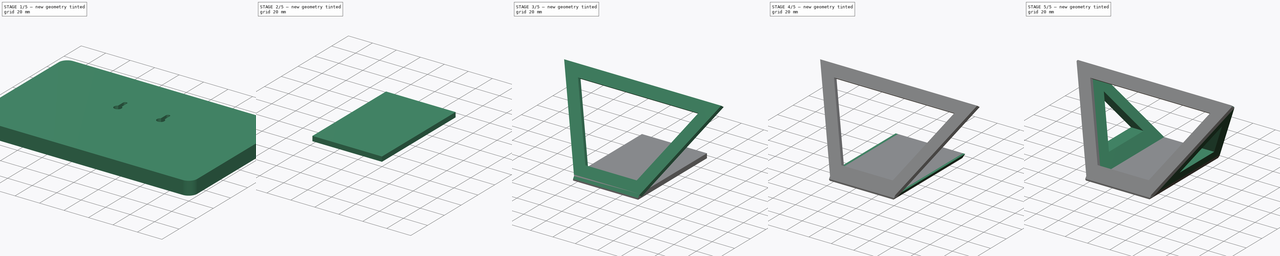
[diagram: build sequence overview — one tinted view per stage of 5, left to right]
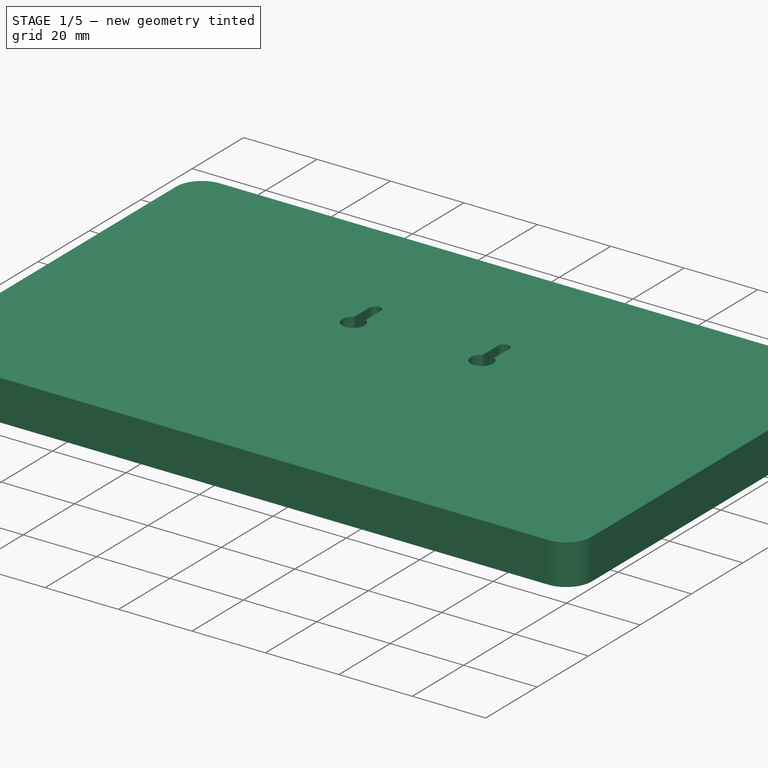
[diagram: stage 1 of 5 — iso view after this stage's code; geometry added in this stage tinted green]
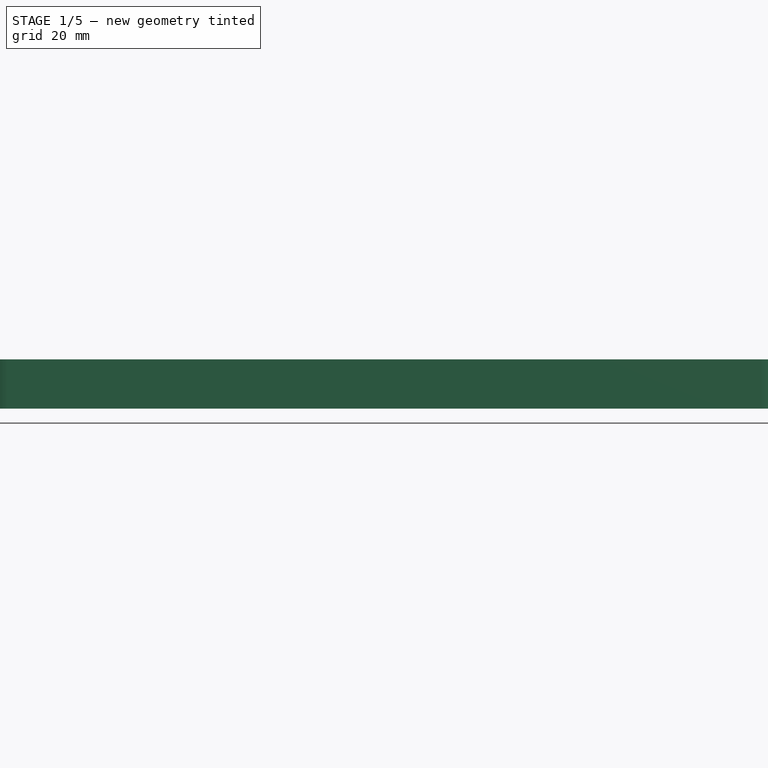
[diagram: stage 1 of 5 — front view after this stage's code; geometry added in this stage tinted green]
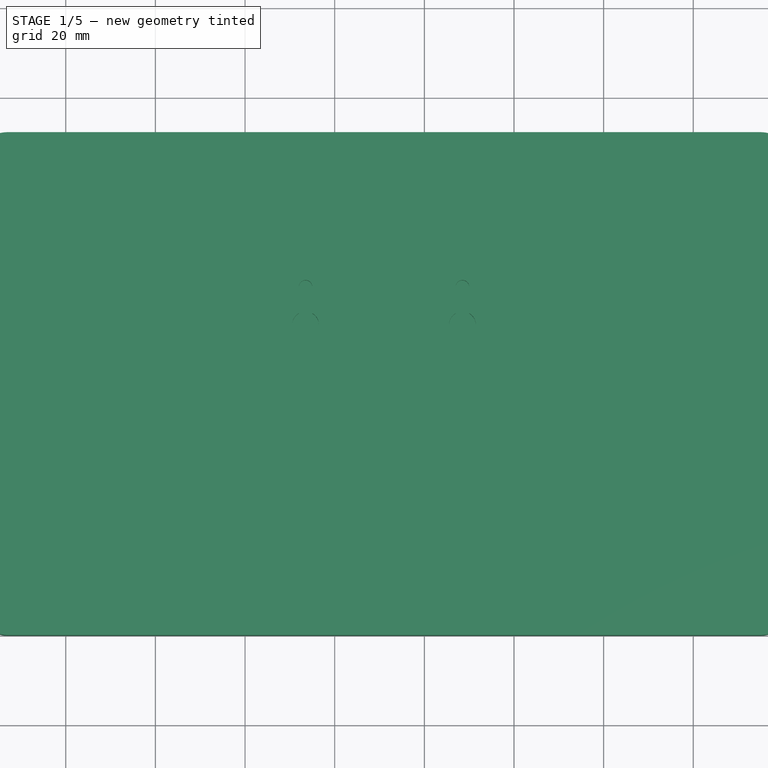
[diagram: stage 1 of 5 — top view after this stage's code; geometry added in this stage tinted green]
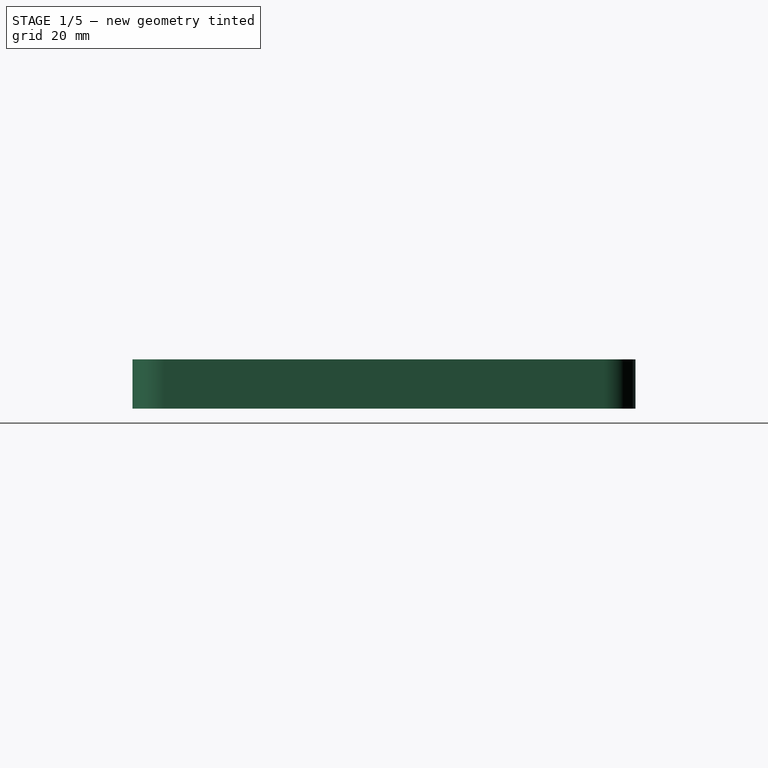
[diagram: stage 1 of 5 — right view after this stage's code; geometry added in this stage tinted green]
FCSTD DOCUMENT  (FreeCAD 0.20R25645 (Git))
Label: touchscreen stand
License: Creative Commons Attribution
LicenseURL: http://creativecommons.org/licenses/by/4.0/
objects: Sketcher::SketchObject×15, PartDesign::Pad×6, PartDesign::Pocket×5, PartDesign::Plane×3, PartDesign::Fillet×2, PartDesign::Body×2, PartDesign::AdditiveLoft×2, PartDesign::SubShapeBinder×1
note: 51 computed .brp shape members not serialized (recipe doc carries the construction recipe); baked Part::Feature solids carry a one-line shape summary decoded from their .brp

FEATURE [Sketcher::SketchObject] Sketch
  FullyConstrained = true
  MapMode = 5
  Support = -> [XY_Plane]
  sketch-geometry (4):
    g0: LineSegment StartX=0 StartY=0 StartZ=0 EndX=182 EndY=0 EndZ=0
    g1: LineSegment StartX=182 StartY=0 StartZ=0 EndX=182 EndY=112.2 EndZ=0
    g2: LineSegment StartX=182 StartY=112.2 StartZ=0 EndX=0 EndY=112.2 EndZ=0
    g3: LineSegment StartX=0 StartY=112.2 StartZ=0 EndX=0 EndY=0 EndZ=0
  constraints (11):
    c: Coincident(g0,g1)
    c: Coincident(g1,g2)
    c: Coincident(g2,g3)
    c: Coincident(g3,g0)
    c: Horizontal(g0)
    c: Horizontal(g2)
    c: Vertical(g1)
    c: Vertical(g3)
    c: Coincident(g0,g-1)
    c: Distance(g2) = 182
    c: Distance(g3) = 112.2
FEATURE [PartDesign::Pad] Pad
  Direction = (0,0,1)
  Length = 11
  Length2 = 100
  Profile = -> Sketch
  Type = 0
FEATURE [Sketcher::SketchObject] Sketch001
  ExternalGeometry = -> [Pad]
  FullyConstrained = true
  MapMode = 5
  Placement = pos=(0,0,11) rot=(0,0,1;0rad)
  Support = -> [Pad]
  sketch-geometry (15):
    g0: ArcOfCircle CenterX=73.5 CenterY=77.7 CenterZ=0 NormalX=0 NormalY=0 NormalZ=1 AngleXU=0 Radius=1.5 StartAngle=6.56e-14 EndAngle=3.14159
    g1: ArcOfCircle CenterX=73.5 CenterY=69.2 CenterZ=0 NormalX=0 NormalY=0 NormalZ=1 AngleXU=0 Radius=3 StartAngle=2.0944 EndAngle=7.33038
    g2: LineSegment StartX=72 StartY=77.7 StartZ=0 EndX=75 EndY=77.7 EndZ=0
    g3: LineSegment StartX=72 StartY=77.7 StartZ=0 EndX=72 EndY=71.7981 EndZ=0
    g4: LineSegment StartX=75 StartY=71.7981 StartZ=0 EndX=75 EndY=77.7 EndZ=0
    g5: LineSegment StartX=73.5 StartY=79.2 StartZ=0 EndX=73.5 EndY=66.2 EndZ=0
    g6: ArcOfCircle CenterX=108.5 CenterY=77.7 CenterZ=0 NormalX=0 NormalY=0 NormalZ=1 AngleXU=0 Radius=1.5 StartAngle=-3.517e-13 EndAngle=3.14159
    g7: LineSegment StartX=107 StartY=77.7 StartZ=0 EndX=110 EndY=77.7 EndZ=0
    g8: LineSegment StartX=107 StartY=77.7 StartZ=0 EndX=107 EndY=71.7981 EndZ=0
    g9: LineSegment StartX=110 StartY=71.7981 StartZ=0 EndX=110 EndY=77.7 EndZ=0
    g10: LineSegment StartX=108.5 StartY=79.2 StartZ=0 EndX=108.5 EndY=66.2 EndZ=0
    g11: ArcOfCircle CenterX=108.5 CenterY=69.2 CenterZ=0 NormalX=0 NormalY=0 NormalZ=1 AngleXU=0 Radius=3 StartAngle=2.0944 EndAngle=7.33038
    g12: LineSegment StartX=73.5 StartY=66.2 StartZ=0 EndX=108.5 EndY=66.2 EndZ=0
    g13: LineSegment StartX=73.5 StartY=66.2 StartZ=0 EndX=0 EndY=66.2 EndZ=0
    g14: LineSegment StartX=108.5 StartY=66.2 StartZ=0 EndX=182 EndY=66.2 EndZ=0
  constraints (48):
    c: Radius(g1) = 3
    c: Radius(g0) = 1.5
    c: Coincident(g2,g0)
    c: Coincident(g2,g0)
    c: PointOnObject(g0,g2)
    c: Horizontal(g2)
    c: Coincident(g3,g0)
    c: Coincident(g3,g1)
    c: Coincident(g4,g1)
    c: Coincident(g4,g0)
    c: Vertical(g4)
    c: Vertical(g3)
    c: Equal(g3,g4)
    c: PointOnObject(g5,g0)
    c: PointOnObject(g5,g1)
    c: Vertical(g5)
    c: PointOnObject(g1,g5)
    c: Distance(g5) = 13
    c: Distance(g5,g-3) = 33
    c: Equal(g1,g11) = 3
    c: Equal(g0,g6) = 1.5
    c: Coincident(g7,g6)
    c: Coincident(g7,g6)
    c: PointOnObject(g6,g7)
    c: Horizontal(g7)
    c: Coincident(g8,g6)
    c: Coincident(g8,g11)
    c: Coincident(g9,g11)
    c: Coincident(g9,g6)
    c: Vertical(g9)
    c: Vertical(g8)
    c: Equal(g8,g9)
    c: PointOnObject(g10,g6)
    c: PointOnObject(g10,g11)
    c: Vertical(g10)
    c: PointOnObject(g11,g10)
    c: Equal(g5,g10) = 13
    c: Coincident(g12,g5)
    c: Horizontal(g12)
    c: Coincident(g12,g10)
    c: Distance(g12) = 35
    c: Coincident(g13,g5)
    c: PointOnObject(g13,g-2)
    c: Horizontal(g13)
    c: Coincident(g14,g10)
    c: PointOnObject(g14,g-4)
    c: Horizontal(g14)
    c: Equal(g14,g13)
FEATURE [PartDesign::Pocket] Pocket
  BaseFeature = -> Pad
  Length = 5
  Length2 = 100
  Profile = -> Sketch001
  Type = 0
FEATURE [PartDesign::Fillet] Fillet
  Base = -> Pocket [Edge1,Edge2,Edge8,Edge5]
  BaseFeature = -> Pocket
  Radius = 7
  SupportTransform = false
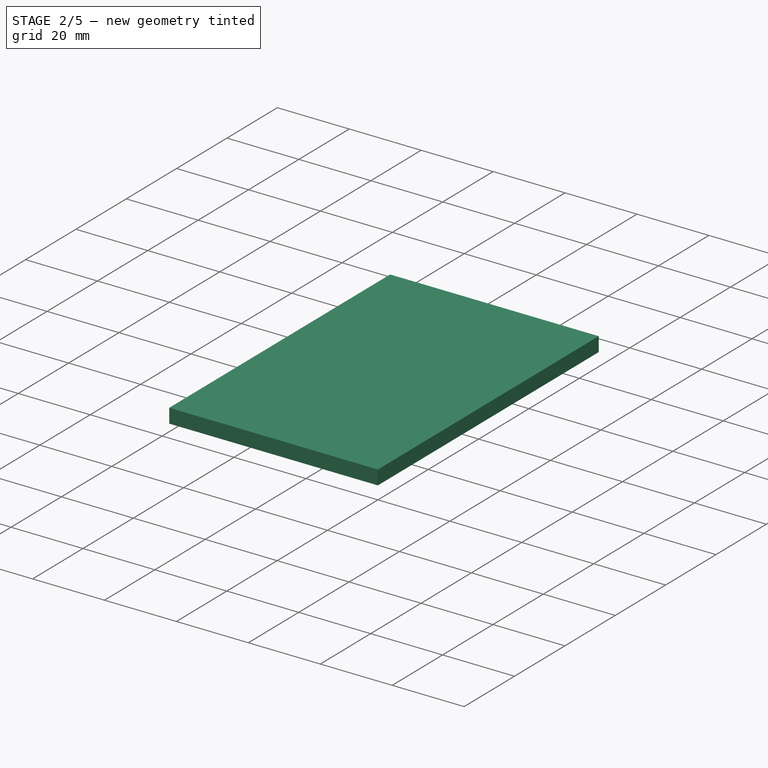
[diagram: stage 2 of 5 — iso view after this stage's code; geometry added in this stage tinted green]
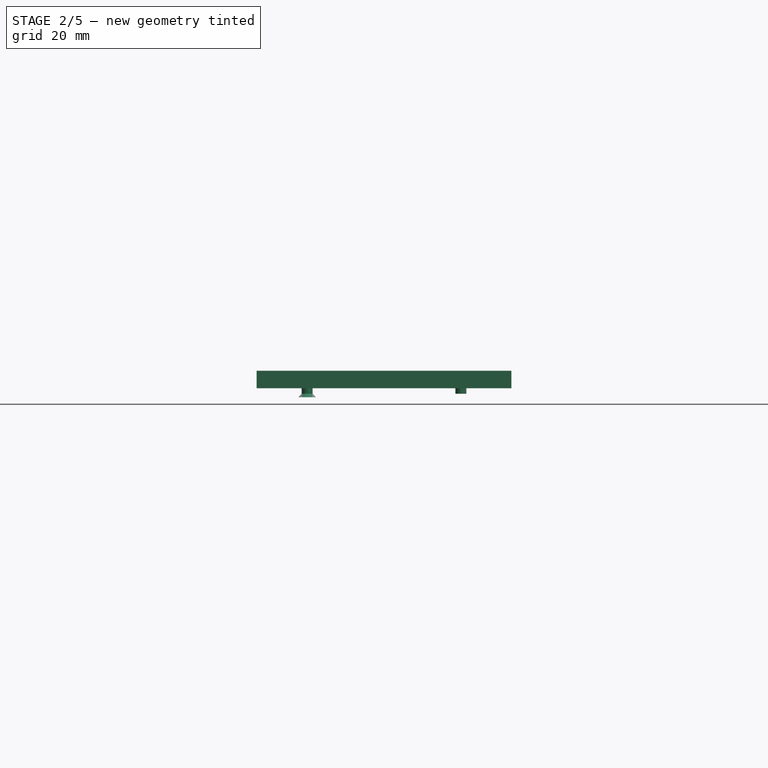
[diagram: stage 2 of 5 — front view after this stage's code; geometry added in this stage tinted green]
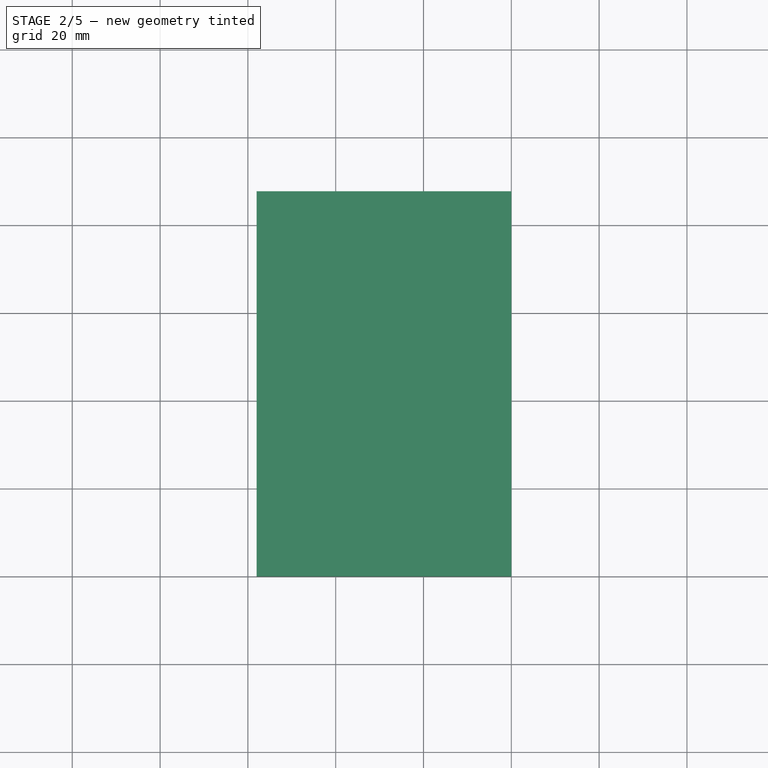
[diagram: stage 2 of 5 — top view after this stage's code; geometry added in this stage tinted green]
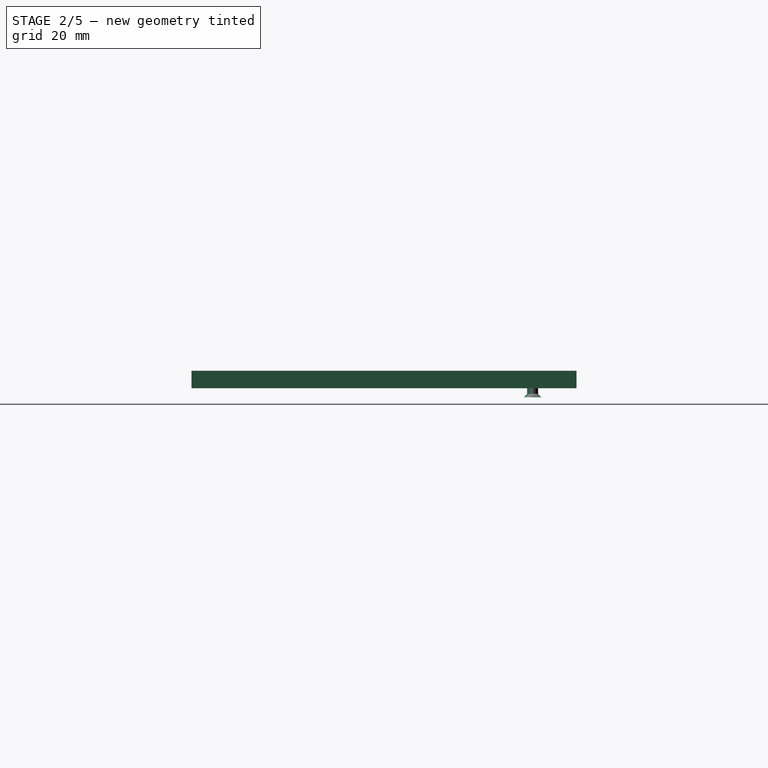
[diagram: stage 2 of 5 — right view after this stage's code; geometry added in this stage tinted green]
FEATURE [PartDesign::Body] Body  label="touchscreen"
  Group = -> [Sketch,Pad,Sketch001,Pocket,Fillet]
  Origin = -> Origin
  Tip = -> Fillet
FEATURE [PartDesign::SubShapeBinder] Binder
  BindMode = 0
  ClaimChildren = false
  Context = -> Body001 [Binder.]
  Fuse = false
  MakeFace = true
  PartialLoad = false
  Relative = true
  Support = -> [Body]
  _Version = 2
FEATURE [Sketcher::SketchObject] Sketch002
  ExternalGeometry = -> [Binder]
  FullyConstrained = true
  MapMode = 5
  Placement = pos=(0,0,11) rot=(0,0,1;0rad)
  Support = -> [Binder]
  sketch-geometry (7):
    g0: LineSegment StartX=62 StartY=87.7 StartZ=0 EndX=120 EndY=87.7 EndZ=0
    g1: LineSegment StartX=120 StartY=87.7 StartZ=0 EndX=120 EndY=0 EndZ=0
    g2: LineSegment StartX=120 StartY=0 StartZ=0 EndX=62 EndY=0 EndZ=0
    g3: LineSegment StartX=62 StartY=0 StartZ=0 EndX=62 EndY=87.7 EndZ=0
    g4: LineSegment StartX=72 StartY=77.7 StartZ=0 EndX=62 EndY=77.7 EndZ=0
    g5: LineSegment StartX=110 StartY=77.7 StartZ=0 EndX=120 EndY=77.7 EndZ=0
    g6: LineSegment StartX=110 StartY=77.7 StartZ=0 EndX=110 EndY=87.7 EndZ=0
  constraints (21):
    c: Coincident(g0,g1)
    c: Coincident(g1,g2)
    c: Coincident(g2,g3)
    c: Coincident(g3,g0)
    c: Horizontal(g0)
    c: Horizontal(g2)
    c: Vertical(g1)
    c: Vertical(g3)
    c: PointOnObject(g1,g-1)
    c: Coincident(g4,g-3)
    c: PointOnObject(g4,g3)
    c: Horizontal(g4)
    c: Coincident(g5,g-4)
    c: PointOnObject(g5,g1)
    c: Horizontal(g5)
    c: Coincident(g6,g5)
    c: PointOnObject(g6,g0)
    c: Vertical(g6)
    c: Distance(g6) = 10
    c: Equal(g5,g4)
    c: Distance(g4) = 10
FEATURE [PartDesign::Pad] Pad001
  Direction = (0,0,1)
  Length = 4
  Length2 = 100
  Profile = -> Sketch002
  Type = 0
FEATURE [Sketcher::SketchObject] Sketch003
  ExternalGeometry = -> [Binder]
  FullyConstrained = true
  MapMode = 5
  Placement = pos=(0,0,11) rot=(1,0,0;3.14159rad)
  Support = -> [Pad001]
  sketch-geometry (2):
    g0: Circle CenterX=73.5 CenterY=-77.7 CenterZ=0 NormalX=0 NormalY=0 NormalZ=1 AngleXU=0 Radius=1.25
    g1: Circle CenterX=108.5 CenterY=-77.7 CenterZ=0 NormalX=0 NormalY=0 NormalZ=1 AngleXU=0 Radius=1.25
  constraints (4):
    c: Coincident(g0,g-4)
    c: Coincident(g1,g-3)
    c: Radius(g0) = 1.25
    c: Equal(g1,g0)
FEATURE [PartDesign::Pad] Pad002
  BaseFeature = -> Pad001
  Direction = (0,0,-1)
  Length = 1.25
  Length2 = 100
  Profile = -> Sketch003
  Type = 0
FEATURE [Sketcher::SketchObject] Sketch004
  ExternalGeometry = -> [Pad002]
  FullyConstrained = true
  MapMode = 5
  Placement = pos=(0,0,9.75) rot=(1,0,0;3.14159rad)
  Support = -> [Pad002]
  sketch-geometry (1):
    g0: Circle CenterX=73.5 CenterY=-77.7 CenterZ=0 NormalX=0 NormalY=0 NormalZ=1 AngleXU=0 Radius=1.25
  constraints (2):
    c: Coincident(g0,g-3)
    c: Equal(g0,g-3)
FEATURE [Sketcher::SketchObject] Sketch005
  AttachmentOffset = pos=(0,0,0.8) rot=(0,0,1;0rad)
  ExternalGeometry = -> [Pad002]
  FullyConstrained = true
  MapMode = 5
  Placement = pos=(0,0,8.95) rot=(1,0,0;3.14159rad)
  Support = -> [Pad002]
  sketch-geometry (1):
    g0: Circle CenterX=73.5 CenterY=-77.7 CenterZ=0 NormalX=0 NormalY=0 NormalZ=1 AngleXU=0 Radius=2
  constraints (2):
    c: Coincident(g0,g-3)
    c: Radius(g0) = 2
FEATURE [PartDesign::AdditiveLoft] AdditiveLoft
  BaseFeature = -> Pad002
  Closed = false
  Profile = -> Sketch004
  Ruled = false
  Sections = -> [Sketch005]
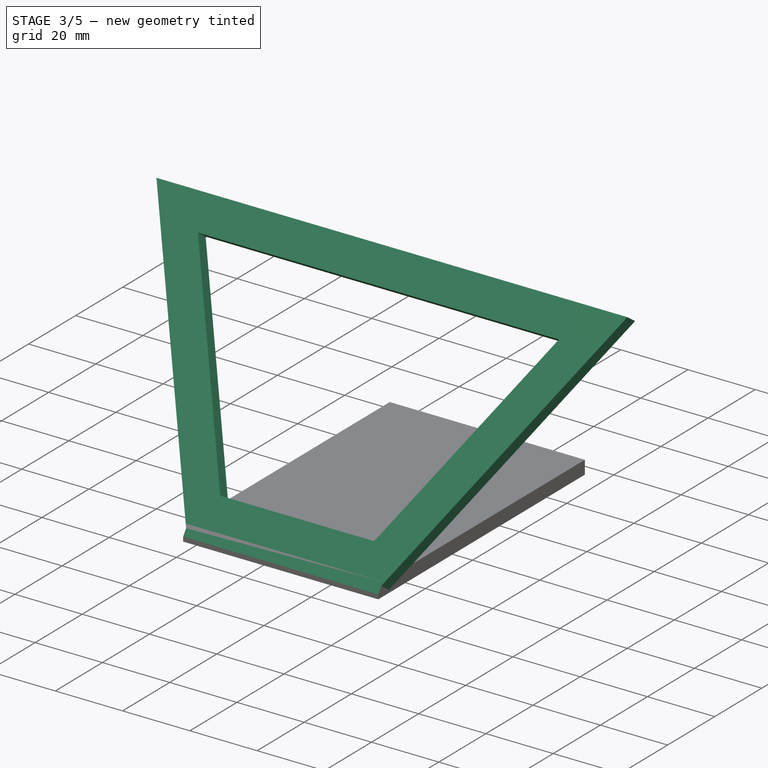
[diagram: stage 3 of 5 — iso view after this stage's code; geometry added in this stage tinted green]
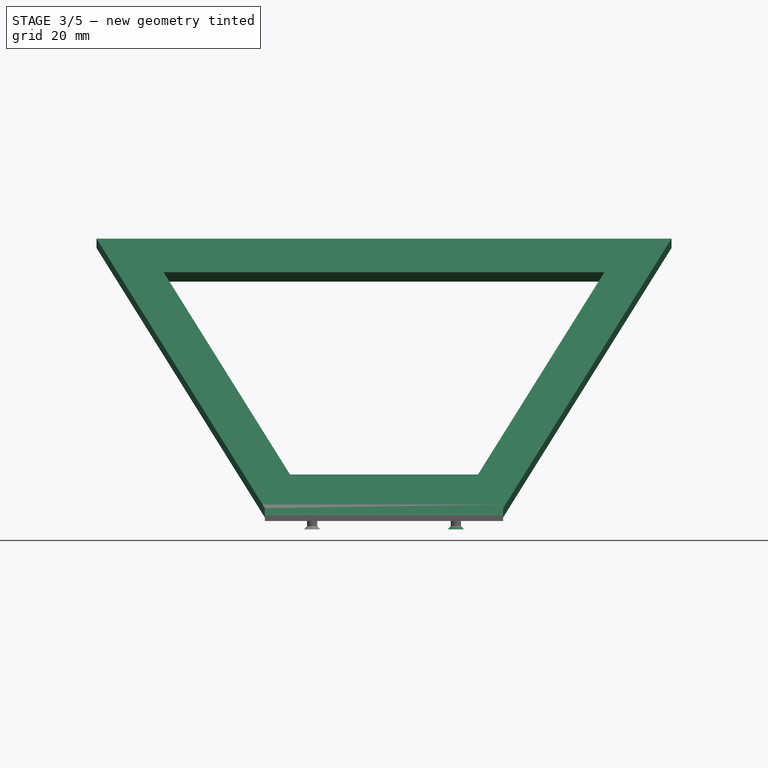
[diagram: stage 3 of 5 — front view after this stage's code; geometry added in this stage tinted green]
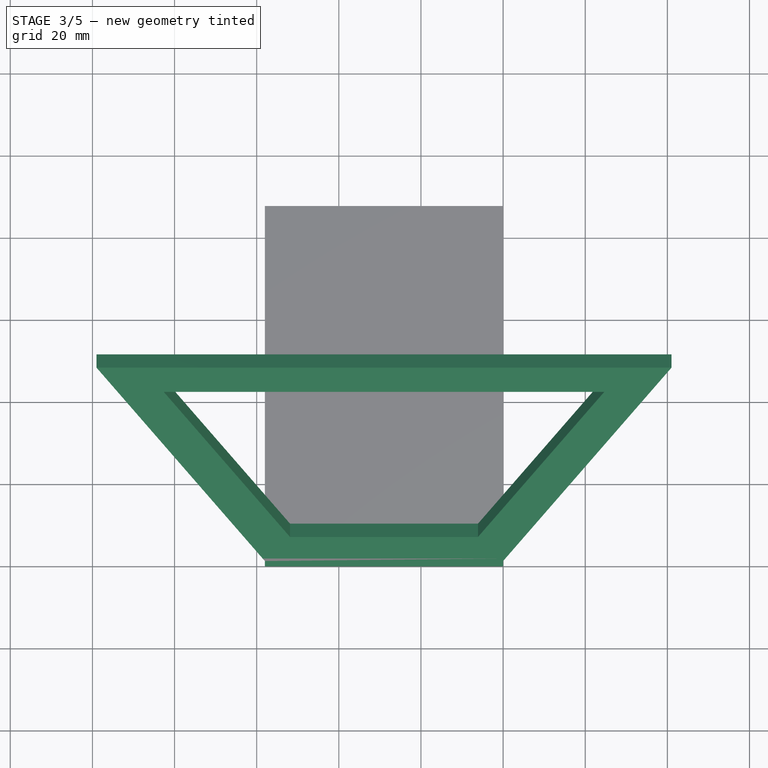
[diagram: stage 3 of 5 — top view after this stage's code; geometry added in this stage tinted green]
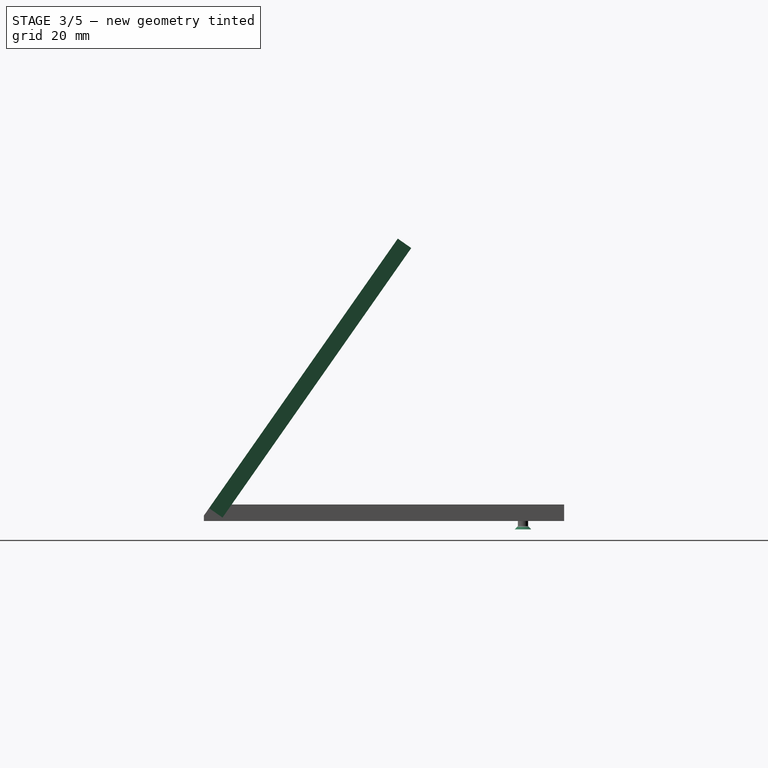
[diagram: stage 3 of 5 — right view after this stage's code; geometry added in this stage tinted green]
FEATURE [Sketcher::SketchObject] Sketch006
  ExternalGeometry = -> [AdditiveLoft]
  FullyConstrained = true
  MapMode = 5
  Placement = pos=(0,0,9.75) rot=(1,0,0;3.14159rad)
  Support = -> [AdditiveLoft]
  sketch-geometry (1):
    g0: Circle CenterX=108.5 CenterY=-77.7 CenterZ=0 NormalX=0 NormalY=0 NormalZ=1 AngleXU=0 Radius=1.25
  constraints (2):
    c: Coincident(g0,g-3)
    c: Equal(g0,g-3)
FEATURE [Sketcher::SketchObject] Sketch007
  AttachmentOffset = pos=(0,0,0.8) rot=(0,0,1;0rad)
  ExternalGeometry = -> [AdditiveLoft]
  FullyConstrained = true
  MapMode = 5
  Placement = pos=(0,0,8.95) rot=(1,0,0;3.14159rad)
  Support = -> [AdditiveLoft]
  sketch-geometry (1):
    g0: Circle CenterX=108.5 CenterY=-77.7 CenterZ=0 NormalX=0 NormalY=0 NormalZ=1 AngleXU=0 Radius=2
  constraints (2):
    c: Coincident(g0,g-3)
    c: Radius(g0) = 2
FEATURE [PartDesign::AdditiveLoft] AdditiveLoft001
  BaseFeature = -> AdditiveLoft
  Closed = false
  Profile = -> Sketch006
  Ruled = false
  Sections = -> [Sketch007]
FEATURE [PartDesign::Plane] DatumPlane
  AttachmentOffset = pos=(0,0,0) rot=(1,0,0;0.610865rad)
  Length = 218.764
  MapMode = 13
  Placement = pos=(100.667,0,12.3333) rot=(0,0.887011,0.461749;3.14159rad)
  ResizeMode = 0
  Support = -> [AdditiveLoft001]
  Width = 183.849
FEATURE [Sketcher::SketchObject] Sketch008
  ExternalGeometry = -> [AdditiveLoft001]
  FullyConstrained = true
  MapMode = 5
  Placement = pos=(100.667,0,12.3333) rot=(0,0.887011,0.461749;3.14159rad)
  Support = -> [DatumPlane]
  sketch-geometry (8):
    g0: LineSegment StartX=-19.3333 StartY=2.18441 StartZ=0 EndX=-60.3333 EndY=82.3031 EndZ=0
    g1: LineSegment StartX=38.6667 StartY=2.18441 StartZ=0 EndX=79.6667 EndY=82.3031 EndZ=0
    g2: LineSegment StartX=79.6667 StartY=82.3031 StartZ=0 EndX=-60.3333 EndY=82.3031 EndZ=0
    g3: LineSegment StartX=-43.9826 StartY=72.3031 StartZ=0 EndX=-13.2174 EndY=12.1844 EndZ=0
    g4: LineSegment StartX=-13.2174 StartY=12.1844 StartZ=0 EndX=32.5507 EndY=12.1844 EndZ=0
    g5: LineSegment StartX=32.5507 StartY=12.1844 StartZ=0 EndX=63.3159 EndY=72.3031 EndZ=0
    g6: LineSegment StartX=63.3159 StartY=72.3031 StartZ=0 EndX=-43.9826 EndY=72.3031 EndZ=0
    g7: LineSegment StartX=-19.3333 StartY=2.18441 StartZ=0 EndX=38.6667 EndY=2.18441 EndZ=0
  constraints (22):
    c: Coincident(g0,g-3)
    c: Coincident(g1,g-4)
    c: Coincident(g2,g1)
    c: Coincident(g2,g0)
    c: Horizontal(g2)
    c: Coincident(g4,g3)
    c: Horizontal(g4)
    c: Coincident(g5,g4)
    c: Coincident(g6,g5)
    c: Coincident(g6,g3)
    c: Horizontal(g6)
    c: Parallel(g1,g5)
    c: Parallel(g3,g0)
    c: Equal(g3,g5)
    c: Distance(g3,g0) = 10
    c: Distance(g3,g2) = 10
    c: Distance(g5,g1) = 10
    c: DistanceY(g1,g4) = 10
    c: Distance(g2) = 140
    c: Distance(g1) = 90
    c: Coincident(g7,g0)
    c: Coincident(g7,g1)
FEATURE [PartDesign::Pad] Pad003
  BaseFeature = -> AdditiveLoft001
  Direction = (0,0.819152,-0.573576)
  Length = 4
  Length2 = 100
  Profile = -> Sketch008
  Type = 0
FEATURE [Sketcher::SketchObject] Sketch009
  ExternalGeometry = -> [Pad003]
  FullyConstrained = true
  MapMode = 5
  Placement = pos=(120,0,0) rot=(0.57735,0.57735,0.57735;2.0944rad)
  Support = -> [Pad003]
  sketch-geometry (3):
    g0: LineSegment StartX=0 StartY=15 StartZ=0 EndX=1.86722 EndY=15 EndZ=0
    g1: LineSegment StartX=0 StartY=15 StartZ=0 EndX=0 EndY=12.3333 EndZ=0
    g2: LineSegment StartX=0 StartY=12.3333 StartZ=0 EndX=1.86722 EndY=15 EndZ=0
  constraints (8):
    c: Coincident(g0,g-4)
    c: PointOnObject(g0,g-3)
    c: Horizontal(g0)
    c: Coincident(g1,g0)
    c: PointOnObject(g1,g-4)
    c: Coincident(g2,g0)
    c: PointOnObject(g-3,g2)
    c: Coincident(g1,g2)
FEATURE [PartDesign::Pocket] Pocket001
  BaseFeature = -> Pad003
  Length = 5
  Length2 = 100
  Profile = -> Sketch009
  Type = 1
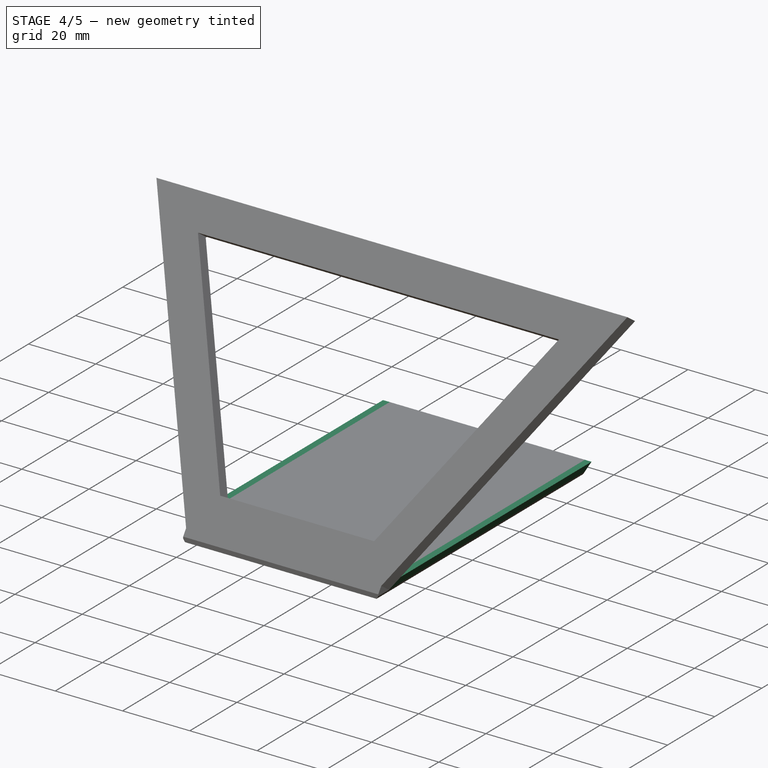
[diagram: stage 4 of 5 — iso view after this stage's code; geometry added in this stage tinted green]
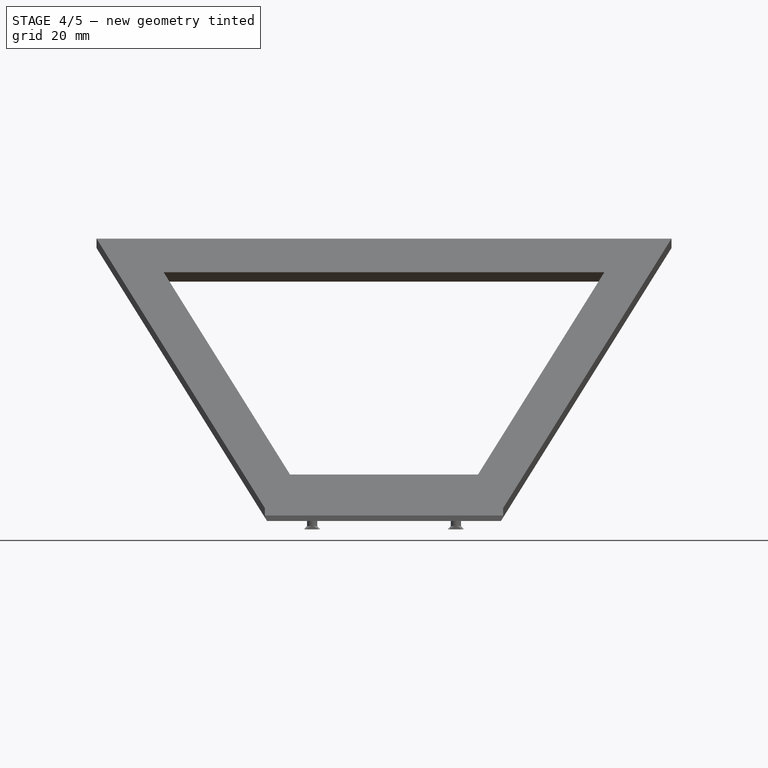
[diagram: stage 4 of 5 — front view after this stage's code; geometry added in this stage tinted green]
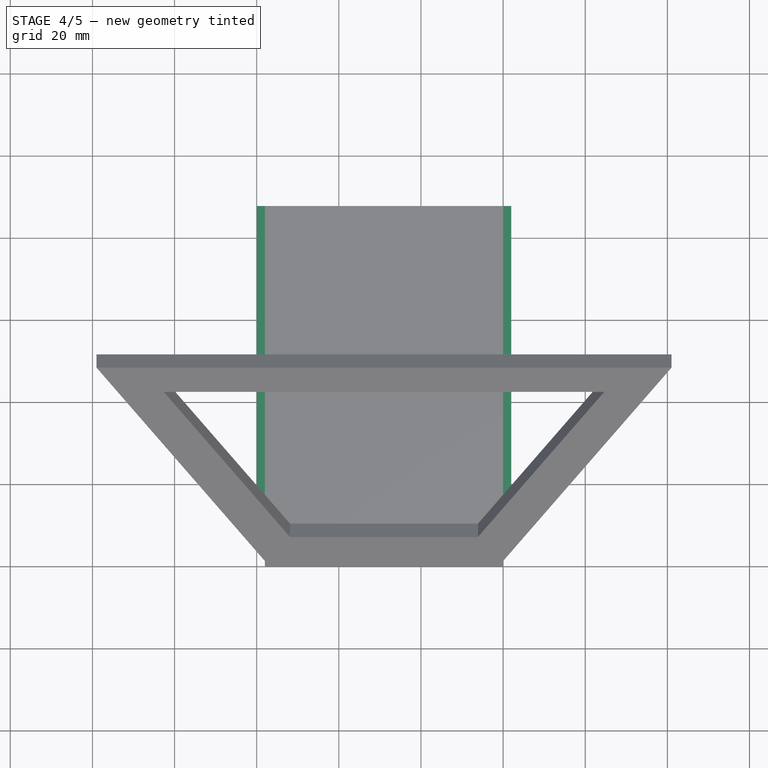
[diagram: stage 4 of 5 — top view after this stage's code; geometry added in this stage tinted green]
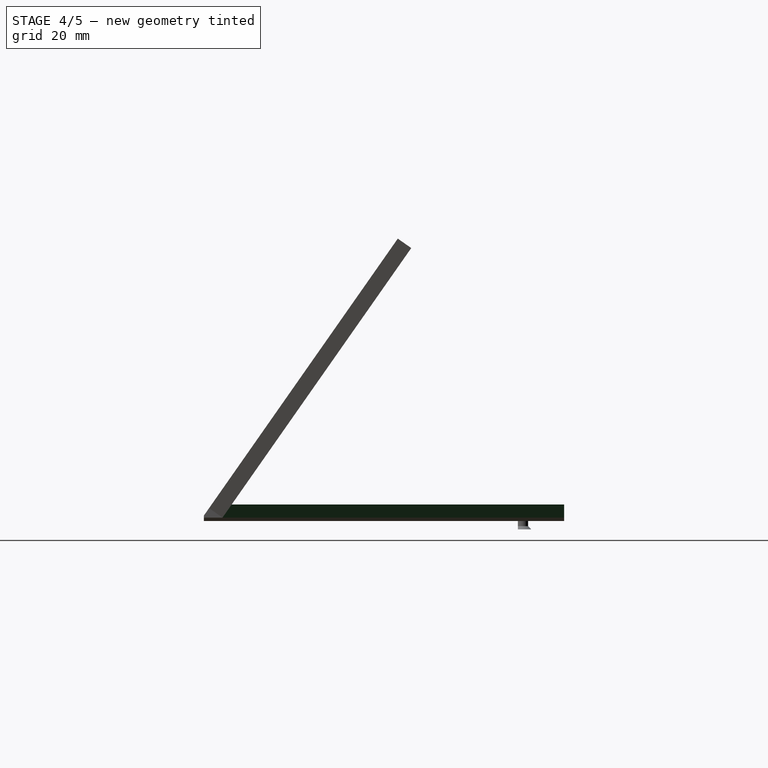
[diagram: stage 4 of 5 — right view after this stage's code; geometry added in this stage tinted green]
FEATURE [Sketcher::SketchObject] Sketch010
  ExternalGeometry = -> [Pocket001]
  FullyConstrained = true
  MapMode = 5
  Placement = pos=(0,87.7,0) rot=(0,0.707107,0.707107;3.14159rad)
  Support = -> [Pocket001]
  sketch-geometry (6):
    g0: LineSegment StartX=-120 StartY=15 StartZ=0 EndX=-121.981 EndY=15 EndZ=0
    g1: LineSegment StartX=-121.981 StartY=15 StartZ=0 EndX=-120 EndY=11.8284 EndZ=0
    g2: LineSegment StartX=-120 StartY=11.8284 StartZ=0 EndX=-120 EndY=15 EndZ=0
    g3: LineSegment StartX=-62 StartY=15 StartZ=0 EndX=-60.0186 EndY=15 EndZ=0
    g4: LineSegment StartX=-60.0186 StartY=15 StartZ=0 EndX=-62 EndY=11.8284 EndZ=0
    g5: LineSegment StartX=-62 StartY=11.8284 StartZ=0 EndX=-62 EndY=15 EndZ=0
  constraints (14):
    c: Coincident(g0,g-5)
    c: PointOnObject(g0,g-4)
    c: Horizontal(g0)
    c: Coincident(g1,g0)
    c: Coincident(g1,g-4)
    c: Coincident(g2,g1)
    c: Coincident(g2,g0)
    c: Coincident(g3,g-5)
    c: PointOnObject(g3,g-3)
    c: Horizontal(g3)
    c: Coincident(g4,g3)
    c: Coincident(g4,g-3)
    c: Coincident(g5,g4)
    c: Coincident(g5,g3)
FEATURE [PartDesign::Pad] Pad004
  BaseFeature = -> Pocket001
  Direction = (0,1,-2e-16)
  Length = 10
  Length2 = 100
  Profile = -> Sketch010
  Reversed = true
  Type = 3
  UpToFace = -> Pocket001 [Face6]
FEATURE [Sketcher::SketchObject] Sketch011
  ExternalGeometry = -> [Pad004]
  FullyConstrained = true
  MapMode = 5
  Placement = pos=(0,87.7,0) rot=(0,0.707107,0.707107;3.14159rad)
  Support = -> [Pad004]
  sketch-geometry (6):
    g0: LineSegment StartX=-120 StartY=11.8284 StartZ=0 EndX=-119.482 EndY=11 EndZ=0
    g1: LineSegment StartX=-119.482 StartY=11 StartZ=0 EndX=-120 EndY=11 EndZ=0
    g2: LineSegment StartX=-120 StartY=11 StartZ=0 EndX=-120 EndY=11.8284 EndZ=0
    g3: LineSegment StartX=-62 StartY=11.8284 StartZ=0 EndX=-62.5175 EndY=11 EndZ=0
    g4: LineSegment StartX=-62.5175 StartY=11 StartZ=0 EndX=-62 EndY=11 EndZ=0
    g5: LineSegment StartX=-62 StartY=11 StartZ=0 EndX=-62 EndY=11.8284 EndZ=0
  constraints (14):
    c: Coincident(g0,g-4)
    c: PointOnObject(g0,g-3)
    c: Coincident(g1,g0)
    c: Coincident(g1,g-3)
    c: Coincident(g2,g1)
    c: Coincident(g2,g0)
    c: Parallel(g0,g-4)
    c: Coincident(g3,g-5)
    c: PointOnObject(g3,g-3)
    c: Coincident(g4,g3)
    c: Coincident(g4,g-3)
    c: Coincident(g5,g4)
    c: Coincident(g5,g3)
    c: Parallel(g3,g-5)
FEATURE [PartDesign::Pocket] Pocket002
  BaseFeature = -> Pad004
  Length = 5
  Length2 = 100
  Profile = -> Sketch011
  Type = 1
FEATURE [PartDesign::Plane] DatumPlane001
  Length = 126.991
  MapMode = 45
  Placement = pos=(120,47.6423,11.8866) rot=(0.707106,-0.001339,0.707106;3.14427rad)
  ResizeMode = 0
  Support = -> [Pocket002]
  Width = 134.909
FEATURE [Sketcher::SketchObject] Sketch012
  ExternalGeometry = -> [Pocket002]
  FullyConstrained = true
  MapMode = 5
  Placement = pos=(120,47.6423,11.8866) rot=(0.707106,-0.001339,0.707106;3.14427rad)
  Support = -> [DatumPlane001]
  sketch-geometry (4):
    g0: LineSegment StartX=-0.995677 StartY=-28.7994 StartZ=0 EndX=-3.04569 EndY=-28.7994 EndZ=0
    g1: LineSegment StartX=-0.988105 StartY=-26.7994 StartZ=0 EndX=-3.04569 EndY=-26.7994 EndZ=0
    g2: LineSegment StartX=-3.04569 StartY=-26.7994 StartZ=0 EndX=-3.04569 EndY=-28.7994 EndZ=0
    g3: LineSegment StartX=-0.988105 StartY=-26.7994 StartZ=0 EndX=-0.995677 EndY=-28.7994 EndZ=0
  constraints (12):
    c: PointOnObject(g0,g-3)
    c: PointOnObject(g0,g-6)
    c: Horizontal(g0)
    c: Distance(g-4,g0) = 1.25
    c: PointOnObject(g1,g-3)
    c: Horizontal(g1)
    c: Coincident(g2,g1)
    c: Coincident(g0,g2)
    c: Vertical(g2)
    c: Distance(g2) = 2
    c: Coincident(g3,g1)
    c: Coincident(g3,g0)
FEATURE [PartDesign::Pocket] Pocket003
  BaseFeature = -> Pocket002
  Length = 5
  Length2 = 100
  Profile = -> Sketch012
  Type = 1
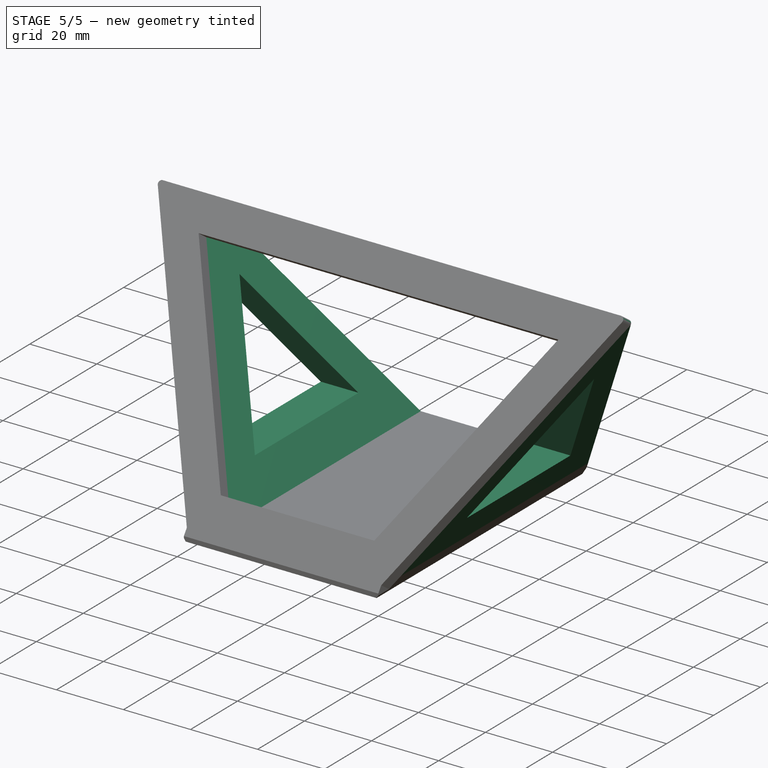
[diagram: stage 5 of 5 — iso view after this stage's code; geometry added in this stage tinted green]
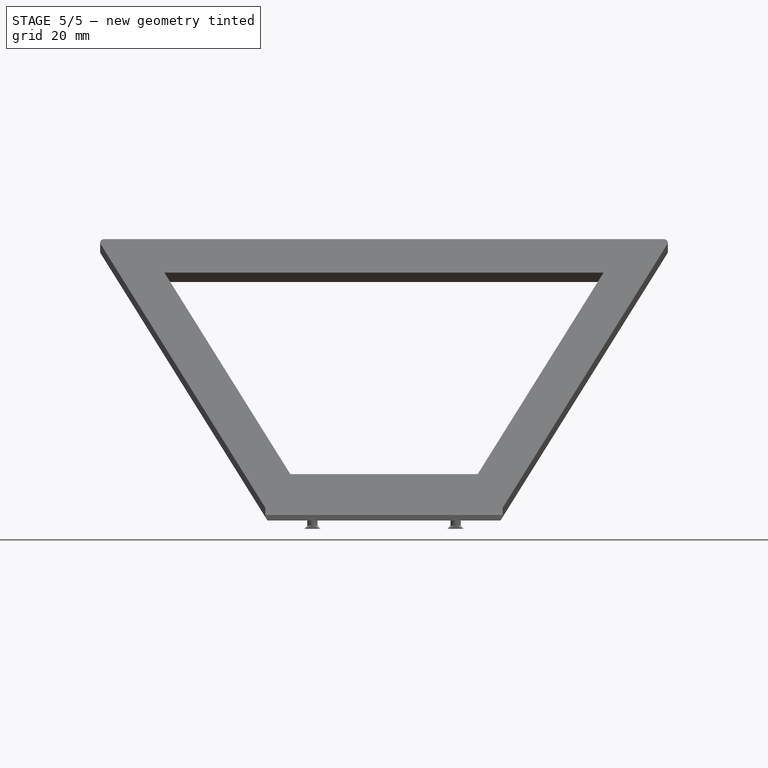
[diagram: stage 5 of 5 — front view after this stage's code; geometry added in this stage tinted green]
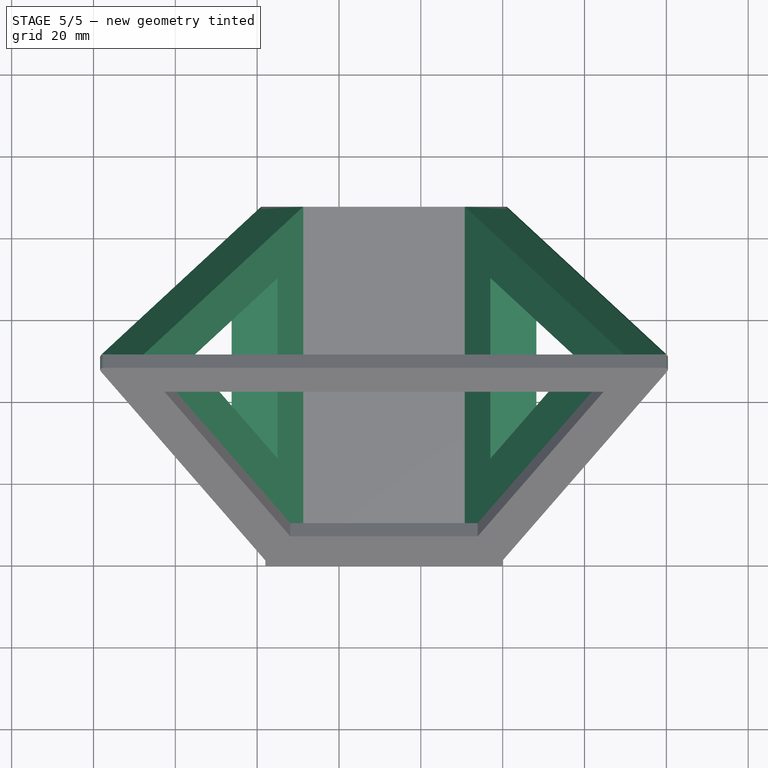
[diagram: stage 5 of 5 — top view after this stage's code; geometry added in this stage tinted green]
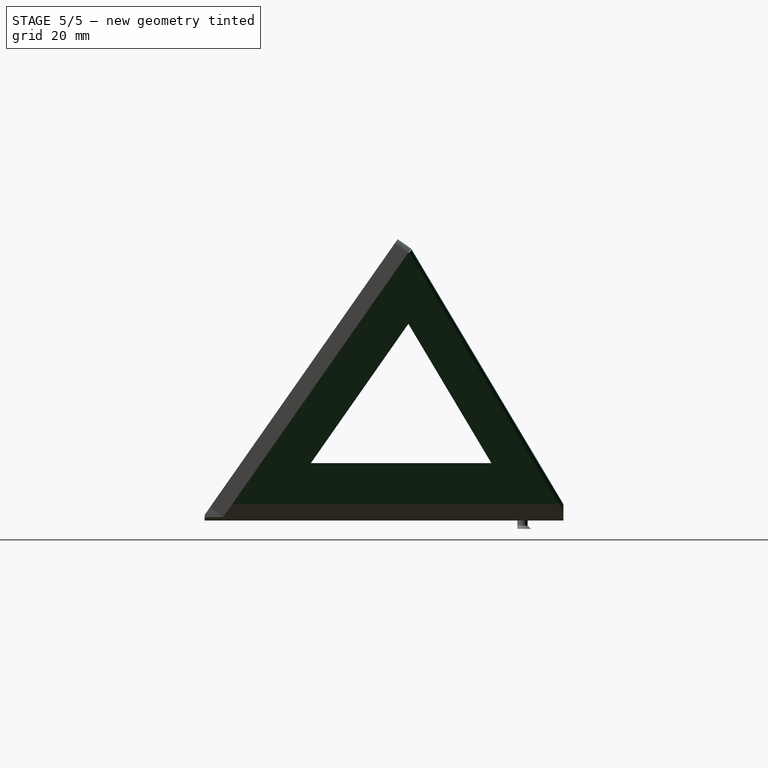
[diagram: stage 5 of 5 — right view after this stage's code; geometry added in this stage tinted green]
FEATURE [Sketcher::SketchObject] Sketch013
  ExternalGeometry = -> [Pocket003]
  FullyConstrained = true
  MapMode = 5
  Placement = pos=(0,87.7,0) rot=(0,0.707107,0.707107;3.14159rad)
  Support = -> [Pocket003]
  sketch-geometry (8):
    g0: LineSegment StartX=-149.767 StartY=77.4578 StartZ=0 EndX=-110.748 EndY=15 EndZ=0
    g1: LineSegment StartX=-149.767 StartY=77.4578 StartZ=0 EndX=-161 EndY=77.4578 EndZ=0
    g2: LineSegment StartX=-161 StartY=77.4578 StartZ=0 EndX=-121.981 EndY=15 EndZ=0
    g3: LineSegment StartX=-121.981 StartY=15 StartZ=0 EndX=-110.748 EndY=15 EndZ=0
    g4: LineSegment StartX=-21 StartY=77.4578 StartZ=0 EndX=-60.0186 EndY=15 EndZ=0
    g5: LineSegment StartX=-32.2333 StartY=77.4578 StartZ=0 EndX=-71.252 EndY=15 EndZ=0
    g6: LineSegment StartX=-71.252 StartY=15 StartZ=0 EndX=-60.0186 EndY=15 EndZ=0
    g7: LineSegment StartX=-21 StartY=77.4578 StartZ=0 EndX=-32.2333 EndY=77.4578 EndZ=0
  constraints (20):
    c: PointOnObject(g0,g-6)
    c: PointOnObject(g0,g-5)
    c: PointOnObject(g-3,g0)
    c: PointOnObject(g-3,g0)
    c: Coincident(g1,g0)
    c: Coincident(g1,g-6)
    c: Coincident(g2,g1)
    c: Coincident(g2,g-4)
    c: Coincident(g3,g2)
    c: Coincident(g3,g0)
    c: Coincident(g4,g-7)
    c: Coincident(g4,g-7)
    c: PointOnObject(g5,g-6)
    c: PointOnObject(g5,g-5)
    c: PointOnObject(g-8,g5)
    c: PointOnObject(g-8,g5)
    c: Coincident(g6,g5)
    c: Coincident(g6,g4)
    c: Coincident(g7,g4)
    c: Coincident(g7,g5)
FEATURE [PartDesign::Pad] Pad005
  BaseFeature = -> Pocket003
  Direction = (0,1,-2e-16)
  Length = 10
  Length2 = 100
  Profile = -> Sketch013
  Reversed = true
  Type = 3
  UpToFace = -> Pocket003 [Face19]
FEATURE [PartDesign::Plane] DatumPlane002
  Length = 182.686
  MapMode = 49
  Placement = pos=(21,47.2071,79.7521) rot=(0.663579,0.345437,-0.663579;3.8068rad)
  ResizeMode = 0
  Support = -> [Pad005]
  Width = 180.734
FEATURE [Sketcher::SketchObject] Sketch014
  ExternalGeometry = -> [Pad005]
  FullyConstrained = true
  MapMode = 5
  Placement = pos=(21,47.2071,79.7521) rot=(0.663579,0.345437,-0.663579;3.8068rad)
  Support = -> [DatumPlane002]
  sketch-geometry (6):
    g0: LineSegment StartX=4 StartY=-2.84e-14 StartZ=0 EndX=70.3101 EndY=29.816 EndZ=0
    g1: LineSegment StartX=70.3101 StartY=29.816 StartZ=0 EndX=34.4858 EndY=-21.3464 EndZ=0
    g2: LineSegment StartX=34.4858 StartY=-21.3464 StartZ=0 EndX=4 EndY=-2.84e-14 EndZ=0
    g3: LineSegment StartX=14 StartY=57.037 StartZ=0 EndX=50.1578 EndY=31.719 EndZ=0
    g4: LineSegment StartX=50.1578 StartY=31.719 StartZ=0 EndX=14 EndY=15.4609 EndZ=0
    g5: LineSegment StartX=14 StartY=15.4609 StartZ=0 EndX=14 EndY=57.037 EndZ=0
  constraints (15):
    c: Coincident(g0,g-3)
    c: Coincident(g0,g-4)
    c: Coincident(g1,g0)
    c: Coincident(g1,g-4)
    c: Coincident(g2,g1)
    c: Coincident(g2,g0)
    c: Coincident(g4,g3)
    c: Coincident(g5,g4)
    c: Coincident(g5,g3)
    c: Vertical(g5)
    c: Parallel(g4,g0)
    c: Parallel(g3,g-5)
    c: Distance(g3,g-5) = 10
    c: Distance(g3,g-6) = 10
    c: Distance(g4,g0) = 10
FEATURE [PartDesign::Pocket] Pocket004
  BaseFeature = -> Pad005
  Length = 5
  Length2 = 100
  Profile = -> Sketch014
  Type = 1
FEATURE [PartDesign::Fillet] Fillet001
  Base = -> Pocket004 [Edge34,Edge65,Edge26,Edge64]
  BaseFeature = -> Pocket004
  Radius = 1
  SupportTransform = false
FEATURE [PartDesign::Body] Body001
  Group = -> [Binder,Sketch002,Pad001,Sketch003,Pad002,Sketch004,Sketch005,AdditiveLoft,Sketch006,Sketch007,AdditiveLoft001,DatumPlane,Sketch008,Pad003,Sketch009,Pocket001,Sketch010,Pad004,Sketch011,Pocket002,DatumPlane001,Sketch012,Pocket003,Sketch013,Pad005,DatumPlane002,Sketch014,Pocket004,Fillet001]
  Origin = -> Origin001
  Tip = -> Fillet001
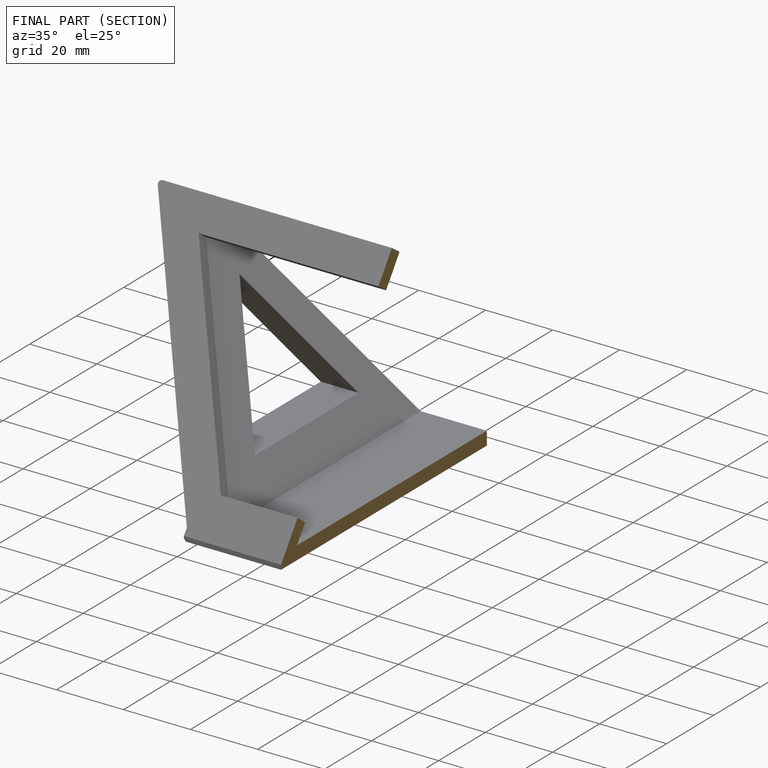
[diagram: finished part — half-section view (interior)]
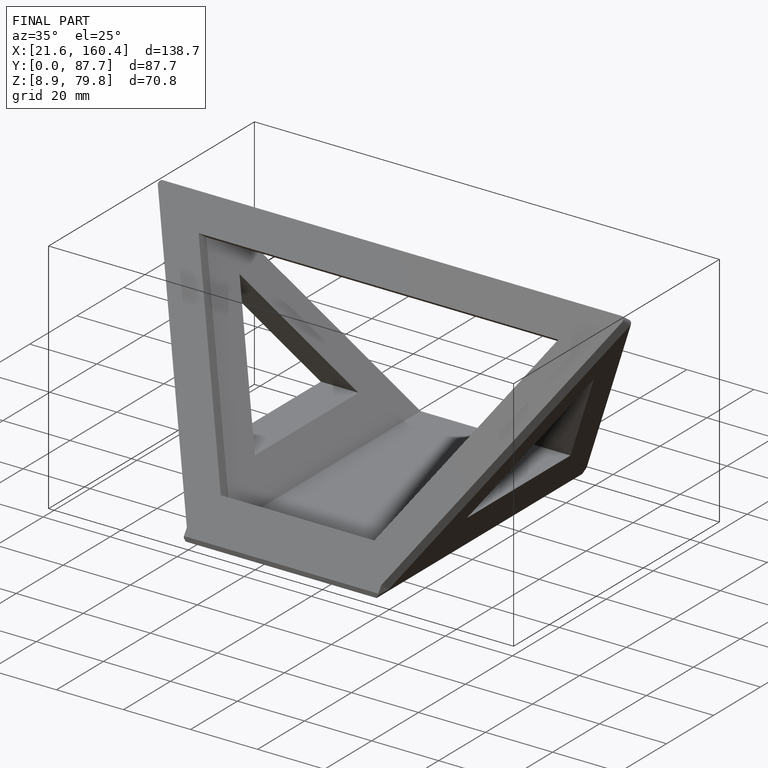
[diagram: finished part — iso view with bounding-box wireframe]
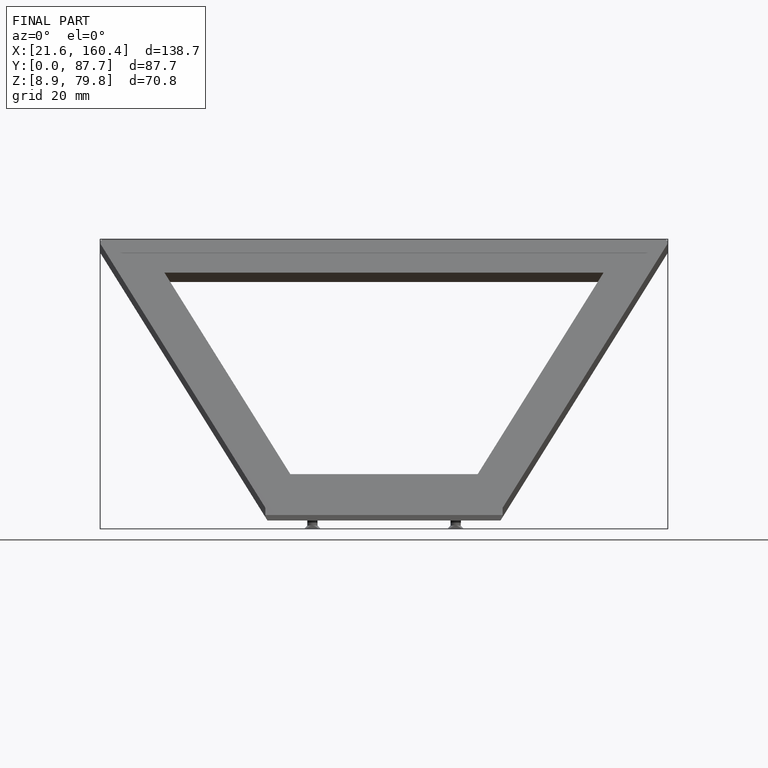
[diagram: finished part — front view with bounding-box wireframe]
